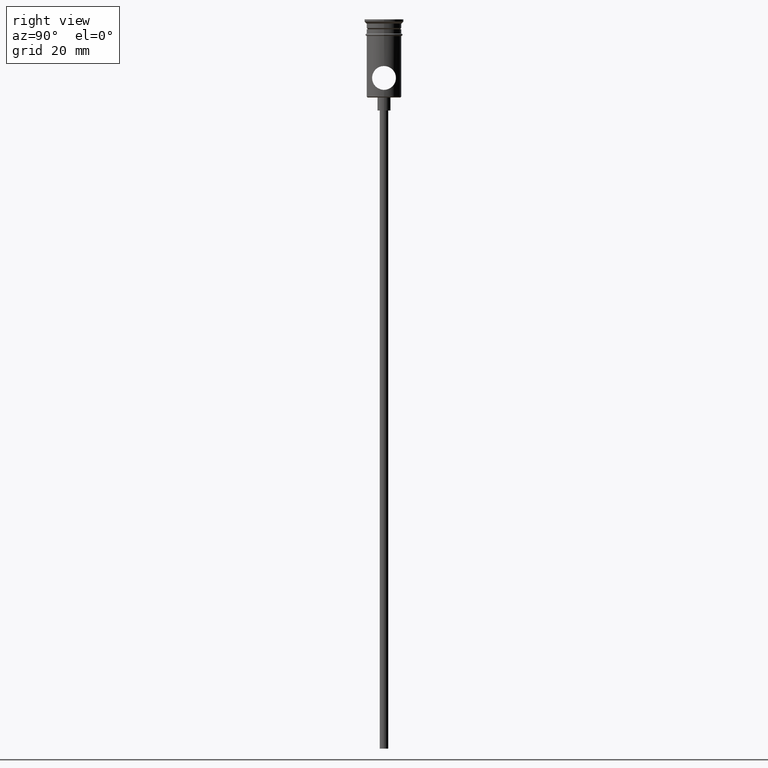
[diagram: clean part render]
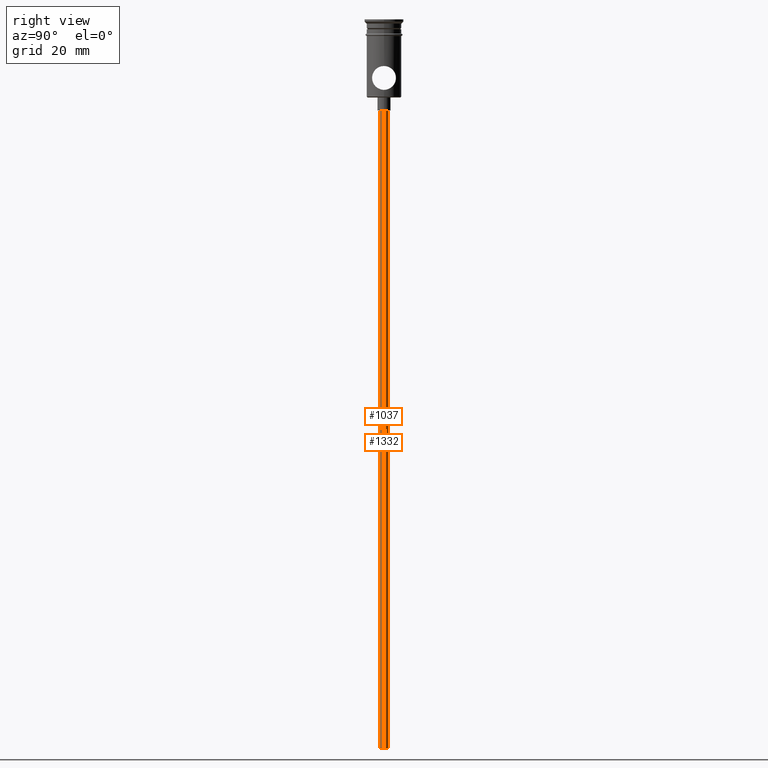
[diagram: same view with one multi-face feature highlighted, each face labeled with its STEP entity id]
A machine part, right view. The highlighted faces form ONE feature: a constant-radius fillet chain: 2 tangent blend faces with common blend radius 1 mm. The faces share edges in the B-rep.
Their STEP definitions:
[1] entity #1037 (Cylinder):
#3 = ORIENTED_EDGE ( 'NONE', *, *, #928, .F. ) ;
#32 = CARTESIAN_POINT ( 'NONE',  ( 0.9999999999999997780, 0.000000000000000000, -167.9999999999999716 ) ) ;
#41 = CIRCLE ( 'NONE', #132, 0.9999999999999997780 ) ;
#45 = AXIS2_PLACEMENT_3D ( 'NONE', #1078, #1085, #721 ) ;
#48 = LINE ( 'NONE', #1243, #1347 ) ;
#69 = ORIENTED_EDGE ( 'NONE', *, *, #1417, .F. ) ;
#80 = VERTEX_POINT ( 'NONE', #32 ) ;
#97 = VERTEX_POINT ( 'NONE', #798 ) ;
#112 = ORIENTED_EDGE ( 'NONE', *, *, #725, .T. ) ;
#132 = AXIS2_PLACEMENT_3D ( 'NONE', #179, #609, #495 ) ;
#158 = DIRECTION ( 'NONE',  ( -1.000000000000000000, 0.000000000000000000, 0.000000000000000000 ) ) ;
#176 = LINE ( 'NONE', #1381, #734 ) ;
#179 = CARTESIAN_POINT ( 'NONE',  ( 0.000000000000000000, 0.000000000000000000, -20.99999999999999645 ) ) ;
#195 = VERTEX_POINT ( 'NONE', #821 ) ;
#393 = CARTESIAN_POINT ( 'NONE',  ( 0.000000000000000000, 0.000000000000000000, -167.9999999999999716 ) ) ;
#407 = CIRCLE ( 'NONE', #855, 0.9999999999999997780 ) ;
#495 = DIRECTION ( 'NONE',  ( -1.000000000000000000, 0.000000000000000000, 0.000000000000000000 ) ) ;
#609 = DIRECTION ( 'NONE',  ( 0.000000000000000000, 0.000000000000000000, -1.000000000000000000 ) ) ;
#721 = DIRECTION ( 'NONE',  ( 1.000000000000000000, 0.000000000000000000, 0.000000000000000000 ) ) ;
#725 = EDGE_CURVE ( 'NONE', #988, #195, #41, .T. ) ;
#733 = FACE_OUTER_BOUND ( 'NONE', #969, .T. ) ;
#734 = VECTOR ( 'NONE', #1049, 1000.000000000000000 ) ;
#798 = CARTESIAN_POINT ( 'NONE',  ( -0.9999999999999997780, 1.224646799147352961E-16, -167.9999999999999716 ) ) ;
#821 = CARTESIAN_POINT ( 'NONE',  ( -0.9999999999999997780, 1.224646799147352961E-16, -20.99999999999999645 ) ) ;
#855 = AXIS2_PLACEMENT_3D ( 'NONE', #393, #1274, #158 ) ;
#896 = DIRECTION ( 'NONE',  ( -0.000000000000000000, -0.000000000000000000, 1.000000000000000000 ) ) ;
#928 = EDGE_CURVE ( 'NONE', #80, #97, #407, .T. ) ;
#969 = EDGE_LOOP ( 'NONE', ( #69, #3, #1375, #112 ) ) ;
#988 = VERTEX_POINT ( 'NONE', #1151 ) ;
#1004 = EDGE_CURVE ( 'NONE', #80, #988, #176, .T. ) ;
#1037 = ADVANCED_FACE ( 'NONE', ( #733 ), #1191, .T. ) ;
#1049 = DIRECTION ( 'NONE',  ( -0.000000000000000000, -0.000000000000000000, 1.000000000000000000 ) ) ;
#1078 = CARTESIAN_POINT ( 'NONE',  ( 0.000000000000000000, 0.000000000000000000, -167.9999999999999716 ) ) ;
#1085 = DIRECTION ( 'NONE',  ( -0.000000000000000000, -0.000000000000000000, 1.000000000000000000 ) ) ;
#1151 = CARTESIAN_POINT ( 'NONE',  ( 0.9999999999999997780, 0.000000000000000000, -20.99999999999999645 ) ) ;
#1191 = CYLINDRICAL_SURFACE ( 'NONE', #45, 0.9999999999999997780 ) ;
#1243 = CARTESIAN_POINT ( 'NONE',  ( -0.9999999999999997780, 1.224646799147352961E-16, -167.9999999999999716 ) ) ;
#1274 = DIRECTION ( 'NONE',  ( 0.000000000000000000, 0.000000000000000000, -1.000000000000000000 ) ) ;
#1347 = VECTOR ( 'NONE', #896, 1000.000000000000000 ) ;
#1375 = ORIENTED_EDGE ( 'NONE', *, *, #1004, .T. ) ;
#1381 = CARTESIAN_POINT ( 'NONE',  ( 0.9999999999999997780, 0.000000000000000000, -167.9999999999999716 ) ) ;
#1417 = EDGE_CURVE ( 'NONE', #97, #195, #48, .T. ) ;
[2] entity #1332 (Cylinder):
#32 = CARTESIAN_POINT ( 'NONE',  ( 0.9999999999999997780, 0.000000000000000000, -167.9999999999999716 ) ) ;
#48 = LINE ( 'NONE', #1243, #1347 ) ;
#61 = CARTESIAN_POINT ( 'NONE',  ( 0.000000000000000000, 0.000000000000000000, -167.9999999999999716 ) ) ;
#74 = ORIENTED_EDGE ( 'NONE', *, *, #927, .F. ) ;
#80 = VERTEX_POINT ( 'NONE', #32 ) ;
#97 = VERTEX_POINT ( 'NONE', #798 ) ;
#148 = DIRECTION ( 'NONE',  ( -0.000000000000000000, -0.000000000000000000, 1.000000000000000000 ) ) ;
#162 = FACE_OUTER_BOUND ( 'NONE', #588, .T. ) ;
#176 = LINE ( 'NONE', #1381, #734 ) ;
#195 = VERTEX_POINT ( 'NONE', #821 ) ;
#455 = ORIENTED_EDGE ( 'NONE', *, *, #1210, .T. ) ;
#459 = CARTESIAN_POINT ( 'NONE',  ( 0.000000000000000000, 0.000000000000000000, -20.99999999999999645 ) ) ;
#473 = ORIENTED_EDGE ( 'NONE', *, *, #1004, .F. ) ;
#556 = CIRCLE ( 'NONE', #580, 0.9999999999999997780 ) ;
#580 = AXIS2_PLACEMENT_3D ( 'NONE', #61, #583, #685 ) ;
#583 = DIRECTION ( 'NONE',  ( 0.000000000000000000, 0.000000000000000000, -1.000000000000000000 ) ) ;
#588 = EDGE_LOOP ( 'NONE', ( #74, #711, #455, #473 ) ) ;
#632 = DIRECTION ( 'NONE',  ( -1.000000000000000000, 0.000000000000000000, 0.000000000000000000 ) ) ;
#669 = DIRECTION ( 'NONE',  ( 1.000000000000000000, 0.000000000000000000, 0.000000000000000000 ) ) ;
#685 = DIRECTION ( 'NONE',  ( -1.000000000000000000, 0.000000000000000000, 0.000000000000000000 ) ) ;
#711 = ORIENTED_EDGE ( 'NONE', *, *, #1417, .T. ) ;
#734 = VECTOR ( 'NONE', #1049, 1000.000000000000000 ) ;
#762 = CIRCLE ( 'NONE', #833, 0.9999999999999997780 ) ;
#764 = DIRECTION ( 'NONE',  ( 0.000000000000000000, 0.000000000000000000, -1.000000000000000000 ) ) ;
#786 = CARTESIAN_POINT ( 'NONE',  ( 0.000000000000000000, 0.000000000000000000, -167.9999999999999716 ) ) ;
#798 = CARTESIAN_POINT ( 'NONE',  ( -0.9999999999999997780, 1.224646799147352961E-16, -167.9999999999999716 ) ) ;
#821 = CARTESIAN_POINT ( 'NONE',  ( -0.9999999999999997780, 1.224646799147352961E-16, -20.99999999999999645 ) ) ;
#833 = AXIS2_PLACEMENT_3D ( 'NONE', #459, #764, #632 ) ;
#896 = DIRECTION ( 'NONE',  ( -0.000000000000000000, -0.000000000000000000, 1.000000000000000000 ) ) ;
#927 = EDGE_CURVE ( 'NONE', #97, #80, #556, .T. ) ;
#988 = VERTEX_POINT ( 'NONE', #1151 ) ;
#1004 = EDGE_CURVE ( 'NONE', #80, #988, #176, .T. ) ;
#1030 = CYLINDRICAL_SURFACE ( 'NONE', #1217, 0.9999999999999997780 ) ;
#1049 = DIRECTION ( 'NONE',  ( -0.000000000000000000, -0.000000000000000000, 1.000000000000000000 ) ) ;
#1151 = CARTESIAN_POINT ( 'NONE',  ( 0.9999999999999997780, 0.000000000000000000, -20.99999999999999645 ) ) ;
#1210 = EDGE_CURVE ( 'NONE', #195, #988, #762, .T. ) ;
#1217 = AXIS2_PLACEMENT_3D ( 'NONE', #786, #148, #669 ) ;
#1243 = CARTESIAN_POINT ( 'NONE',  ( -0.9999999999999997780, 1.224646799147352961E-16, -167.9999999999999716 ) ) ;
#1332 = ADVANCED_FACE ( 'NONE', ( #162 ), #1030, .T. ) ;
#1347 = VECTOR ( 'NONE', #896, 1000.000000000000000 ) ;
#1381 = CARTESIAN_POINT ( 'NONE',  ( 0.9999999999999997780, 0.000000000000000000, -167.9999999999999716 ) ) ;
#1417 = EDGE_CURVE ( 'NONE', #97, #195, #48, .T. ) ;